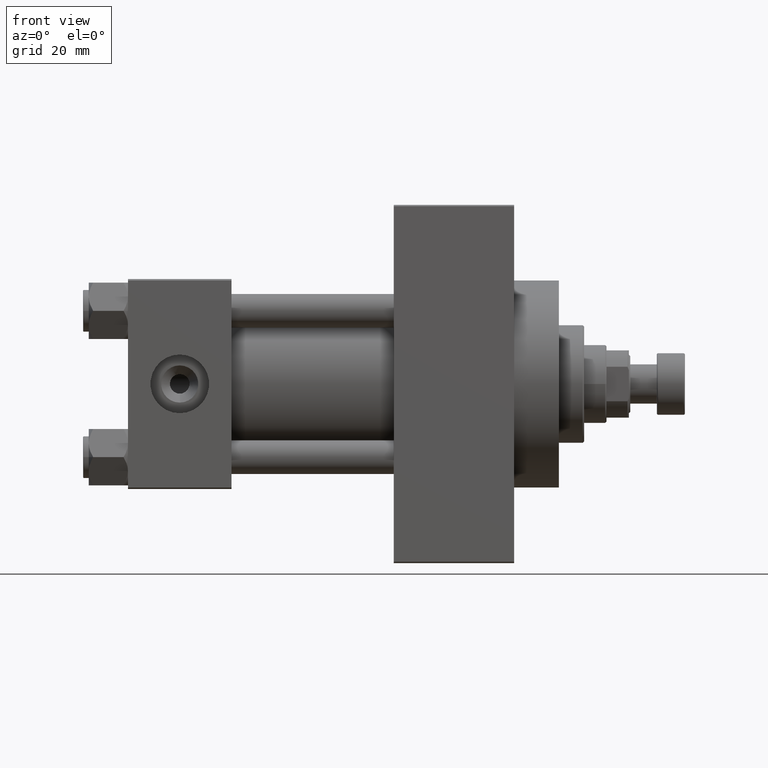
[diagram: clean part render]
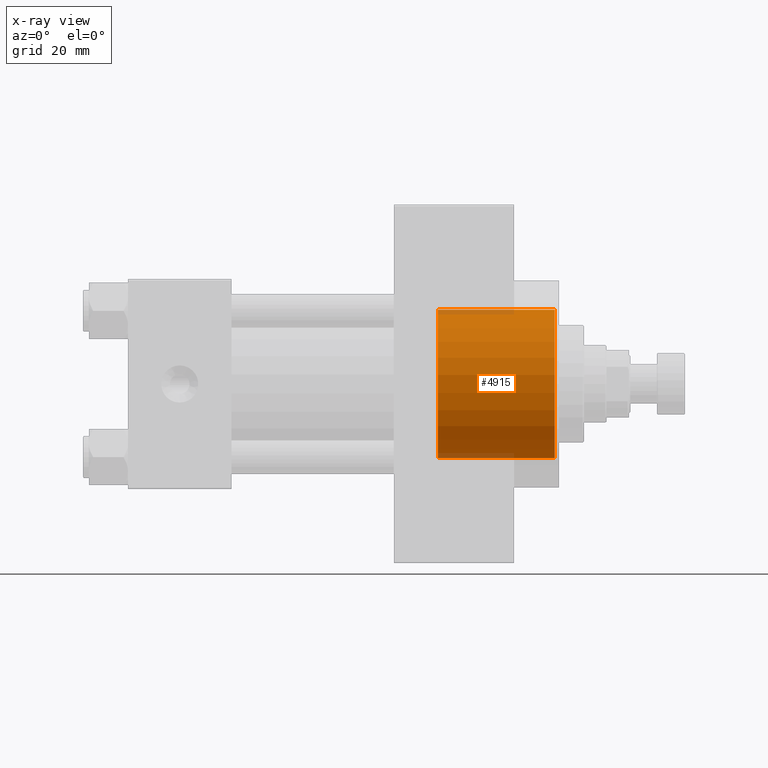
[diagram: x-ray — body ghosted, one internal face saturated and labeled with its STEP entity id]
A machine part, front view, then the same camera in x-ray: the body is ghosted and one INTERNAL B-rep face — a face not visible from any outside direction — is saturated and labeled: STEP entity #4915.
In plain terms, the highlighted cylindrical surface (partial cylindrical patch) has radius 26.5 mm, axis along (1, 0, 0).
Its self-contained STEP definition (entity closure, byte-faithful):
#351 = EDGE_CURVE ( 'NONE', #34454, #38681, #26551, .T. ) ;
#2483 = CARTESIAN_POINT ( 'NONE',  ( 152.5000000000000853, 0.000000000000000000, -26.50000000000000355 ) ) ;
#2537 = AXIS2_PLACEMENT_3D ( 'NONE', #9084, #38417, #27502 ) ;
#2910 = DIRECTION ( 'NONE',  ( 1.000000000000000000, -0.000000000000000000, -0.000000000000000000 ) ) ;
#3638 = VECTOR ( 'NONE', #34492, 1000.000000000000000 ) ;
#4915 = ADVANCED_FACE ( 'NONE', ( #5167 ), #34486, .F. ) ;
#5167 = FACE_OUTER_BOUND ( 'NONE', #11468, .T. ) ;
#5623 = CARTESIAN_POINT ( 'NONE',  ( 110.7400000000000375, 0.000000000000000000, -26.50000000000000355 ) ) ;
#6202 = VECTOR ( 'NONE', #2910, 1000.000000000000000 ) ;
#8521 = VERTEX_POINT ( 'NONE', #2483 ) ;
#9084 = CARTESIAN_POINT ( 'NONE',  ( 110.7400000000000375, 0.000000000000000000, 0.000000000000000000 ) ) ;
#9495 = ORIENTED_EDGE ( 'NONE', *, *, #9723, .F. ) ;
#9723 = EDGE_CURVE ( 'NONE', #38681, #8521, #19709, .T. ) ;
#11468 = EDGE_LOOP ( 'NONE', ( #18909, #22604, #37615, #9495 ) ) ;
#12436 = CARTESIAN_POINT ( 'NONE',  ( 110.7400000000000375, 0.000000000000000000, 0.000000000000000000 ) ) ;
#12784 = DIRECTION ( 'NONE',  ( 0.000000000000000000, 0.000000000000000000, -1.000000000000000000 ) ) ;
#15609 = CARTESIAN_POINT ( 'NONE',  ( 110.7400000000000375, 0.000000000000000000, -26.50000000000000355 ) ) ;
#16934 = AXIS2_PLACEMENT_3D ( 'NONE', #31432, #46213, #12784 ) ;
#17752 = VERTEX_POINT ( 'NONE', #45584 ) ;
#18909 = ORIENTED_EDGE ( 'NONE', *, *, #351, .F. ) ;
#19700 = AXIS2_PLACEMENT_3D ( 'NONE', #12436, #31085, #27210 ) ;
#19709 = LINE ( 'NONE', #15609, #3638 ) ;
#21304 = LINE ( 'NONE', #36085, #6202 ) ;
#22604 = ORIENTED_EDGE ( 'NONE', *, *, #44564, .T. ) ;
#25408 = CIRCLE ( 'NONE', #16934, 26.50000000000000355 ) ;
#26551 = CIRCLE ( 'NONE', #2537, 26.50000000000000355 ) ;
#27210 = DIRECTION ( 'NONE',  ( 0.000000000000000000, 0.000000000000000000, -1.000000000000000000 ) ) ;
#27502 = DIRECTION ( 'NONE',  ( 0.000000000000000000, 0.000000000000000000, -1.000000000000000000 ) ) ;
#31085 = DIRECTION ( 'NONE',  ( 1.000000000000000000, -0.000000000000000000, -0.000000000000000000 ) ) ;
#31432 = CARTESIAN_POINT ( 'NONE',  ( 152.5000000000000853, 0.000000000000000000, 0.000000000000000000 ) ) ;
#34454 = VERTEX_POINT ( 'NONE', #44031 ) ;
#34486 = CYLINDRICAL_SURFACE ( 'NONE', #19700, 26.50000000000000355 ) ;
#34492 = DIRECTION ( 'NONE',  ( 1.000000000000000000, -0.000000000000000000, -0.000000000000000000 ) ) ;
#36085 = CARTESIAN_POINT ( 'NONE',  ( 110.7400000000000375, 3.245314017740486554E-15, 26.50000000000000355 ) ) ;
#37615 = ORIENTED_EDGE ( 'NONE', *, *, #42562, .T. ) ;
#38417 = DIRECTION ( 'NONE',  ( 1.000000000000000000, 0.000000000000000000, 0.000000000000000000 ) ) ;
#38681 = VERTEX_POINT ( 'NONE', #5623 ) ;
#42562 = EDGE_CURVE ( 'NONE', #17752, #8521, #25408, .T. ) ;
#44031 = CARTESIAN_POINT ( 'NONE',  ( 110.7400000000000375, 3.245314017740486554E-15, 26.50000000000000355 ) ) ;
#44564 = EDGE_CURVE ( 'NONE', #34454, #17752, #21304, .T. ) ;
#45584 = CARTESIAN_POINT ( 'NONE',  ( 152.5000000000000853, 3.245314017740486554E-15, 26.50000000000000355 ) ) ;
#46213 = DIRECTION ( 'NONE',  ( 1.000000000000000000, 0.000000000000000000, 0.000000000000000000 ) ) ;